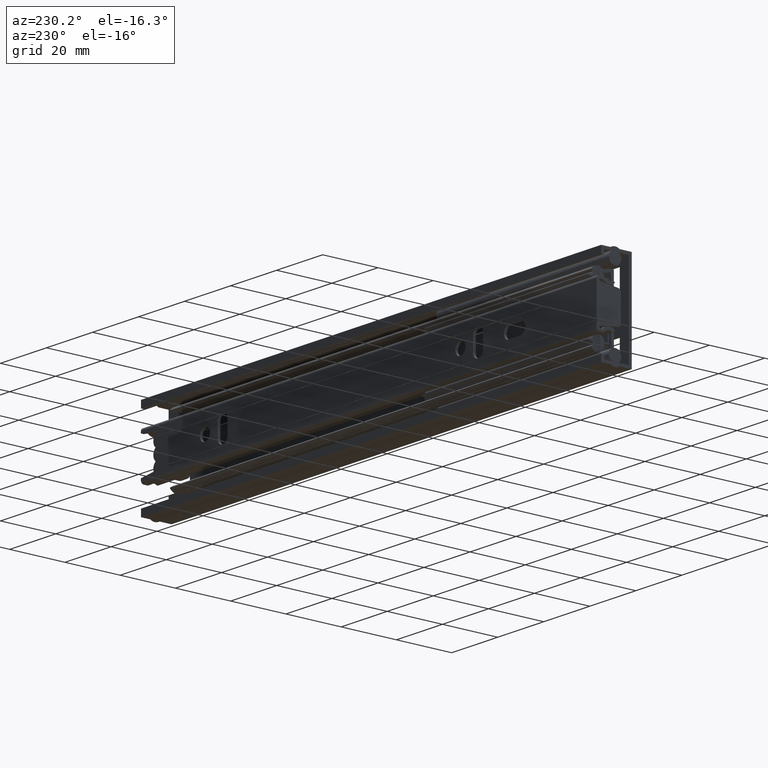
[diagram: clean part render]
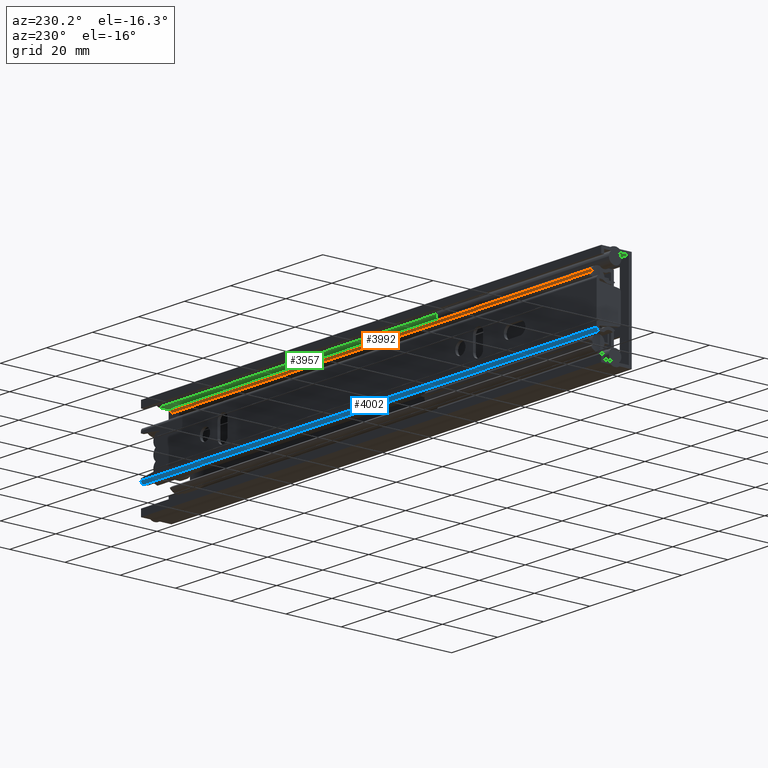
[diagram: same view with three faces highlighted in distinct colors, each labeled with its STEP entity id]
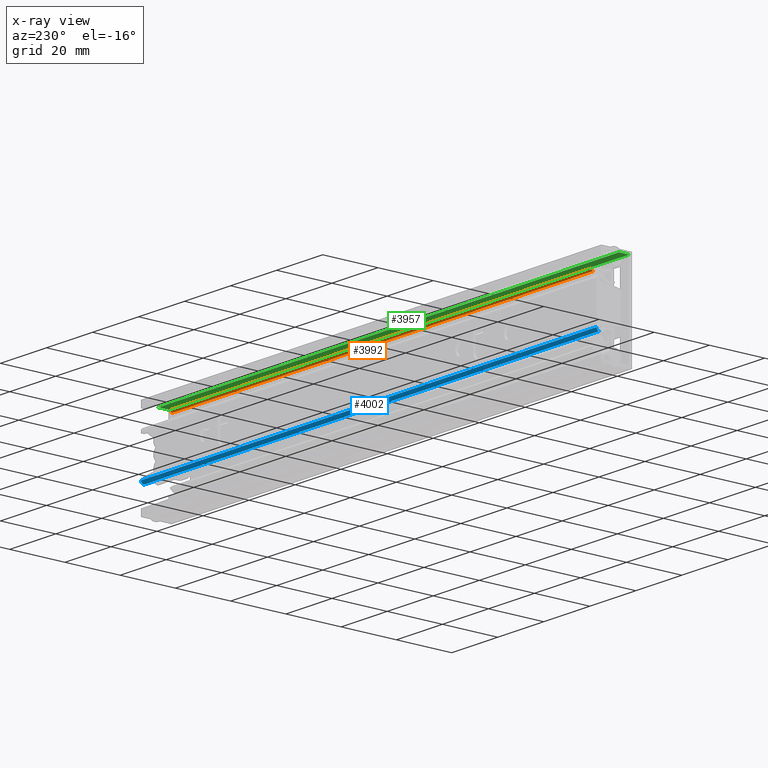
[diagram: x-ray of the same camera — body ghosted, the three highlighted faces saturated]
A machine part, auxiliary view with three faces highlighted in distinct colors.
The next image is the same camera in x-ray (body ghosted, the three faces saturated) — at least one of them is partly hidden behind the body in this view.
Their STEP definitions:

[orange] entity #3992 — the highlighted planar face has unit normal (0, 0.5987, -0.801).
#301=FACE_OUTER_BOUND('',#539,.T.);
#539=EDGE_LOOP('',(#3302,#3303,#3304,#3305));
#860=LINE('',#6242,#1286);
#891=LINE('',#6322,#1317);
#901=LINE('',#6345,#1327);
#902=LINE('',#6347,#1328);
#1286=VECTOR('',#5070,1.00218148947793);
#1317=VECTOR('',#5143,1.00218148947793);
#1327=VECTOR('',#5169,183.);
#1328=VECTOR('',#5172,183.);
#1847=VERTEX_POINT('',#6239);
#1848=VERTEX_POINT('',#6241);
#1875=VERTEX_POINT('',#6319);
#1876=VERTEX_POINT('',#6321);
#2331=EDGE_CURVE('',#1847,#1848,#860,.T.);
#2371=EDGE_CURVE('',#1875,#1876,#891,.T.);
#2383=EDGE_CURVE('',#1847,#1876,#901,.T.);
#2384=EDGE_CURVE('',#1848,#1875,#902,.T.);
#3302=ORIENTED_EDGE('',*,*,#2383,.T.);
#3303=ORIENTED_EDGE('',*,*,#2371,.F.);
#3304=ORIENTED_EDGE('',*,*,#2384,.F.);
#3305=ORIENTED_EDGE('',*,*,#2331,.F.);
#3812=PLANE('',#4305);
#3992=ADVANCED_FACE('',(#301),#3812,.T.);
#4305=AXIS2_PLACEMENT_3D('',#6346,#5170,#5171);
#5070=DIRECTION('',(0.,-0.80097786968476,-0.598693955435716));
#5143=DIRECTION('',(0.,0.80097786968476,0.598693955435716));
#5169=DIRECTION('',(1.,0.,0.));
#5170=DIRECTION('center_axis',(0.,0.598693955435716,-0.800977869684761));
#5171=DIRECTION('ref_axis',(0.,0.80097786968476,0.598693955435716));
#5172=DIRECTION('',(1.,0.,0.));
#6239=CARTESIAN_POINT('',(-91.5,10.806011825547,11.2));
#6241=CARTESIAN_POINT('',(-91.5,10.0032866310674,10.6));
#6242=CARTESIAN_POINT('',(-91.5,10.0032866310674,10.6));
#6319=CARTESIAN_POINT('',(91.5,10.0032866310674,10.6));
#6321=CARTESIAN_POINT('',(91.5,10.806011825547,11.2));
#6322=CARTESIAN_POINT('',(91.5,10.0032866310674,10.6));
#6345=CARTESIAN_POINT('',(0.,10.806011825547,11.2));
#6346=CARTESIAN_POINT('Origin',(0.,10.0032866310674,10.6));
#6347=CARTESIAN_POINT('',(0.,10.0032866310674,10.6));

[blue] entity #4002 — the highlighted cylindrical surface (edge-blend (fillet) strip) has radius 1 mm, axis along (1, 0, 0).
#103=CYLINDRICAL_SURFACE('',#4337,1.);
#311=FACE_OUTER_BOUND('',#556,.T.);
#556=EDGE_LOOP('',(#3388,#3389,#3390,#3391));
#927=LINE('',#6426,#1353);
#934=LINE('',#6458,#1360);
#1353=VECTOR('',#5243,198.);
#1360=VECTOR('',#5270,198.);
#1582=CIRCLE('',#4317,1.);
#1601=CIRCLE('',#4338,1.);
#1886=VERTEX_POINT('',#6370);
#1887=VERTEX_POINT('',#6372);
#1912=VERTEX_POINT('',#6424);
#1927=VERTEX_POINT('',#6456);
#2395=EDGE_CURVE('',#1887,#1886,#1582,.T.);
#2422=EDGE_CURVE('',#1886,#1912,#927,.T.);
#2437=EDGE_CURVE('',#1912,#1927,#1601,.T.);
#2438=EDGE_CURVE('',#1927,#1887,#934,.T.);
#3388=ORIENTED_EDGE('',*,*,#2437,.T.);
#3389=ORIENTED_EDGE('',*,*,#2438,.T.);
#3390=ORIENTED_EDGE('',*,*,#2395,.T.);
#3391=ORIENTED_EDGE('',*,*,#2422,.T.);
#4002=ADVANCED_FACE('',(#311),#103,.T.);
#4317=AXIS2_PLACEMENT_3D('',#6373,#5203,#5204);
#4337=AXIS2_PLACEMENT_3D('',#6455,#5266,#5267);
#4338=AXIS2_PLACEMENT_3D('',#6457,#5268,#5269);
#5203=DIRECTION('center_axis',(1.,0.,0.));
#5204=DIRECTION('ref_axis',(0.,0.707106781186555,-0.70710678118654));
#5243=DIRECTION('',(1.,0.,0.));
#5266=DIRECTION('center_axis',(1.,0.,0.));
#5267=DIRECTION('ref_axis',(0.,0.707106781186555,-0.70710678118654));
#5268=DIRECTION('center_axis',(-1.,0.,0.));
#5269=DIRECTION('ref_axis',(0.,0.707106781186555,-0.70710678118654));
#5270=DIRECTION('',(-1.,0.,0.));
#6370=CARTESIAN_POINT('',(-99.,12.7,-7.15000000000003));
#6372=CARTESIAN_POINT('',(-99.,11.7,-8.15000000000003));
#6373=CARTESIAN_POINT('Origin',(-99.,11.7,-7.15000000000003));
#6424=CARTESIAN_POINT('',(99.,12.7,-7.15000000000003));
#6426=CARTESIAN_POINT('',(0.,12.7,-7.15000000000003));
#6455=CARTESIAN_POINT('Origin',(0.,11.7,-7.15000000000003));
#6456=CARTESIAN_POINT('',(99.,11.7,-8.15000000000003));
#6457=CARTESIAN_POINT('Origin',(99.,11.7,-7.15000000000003));
#6458=CARTESIAN_POINT('',(0.,11.7,-8.15000000000003));

[green] entity #3957 — the highlighted planar face has unit normal (0, -0, -1).
#266=FACE_OUTER_BOUND('',#500,.T.);
#500=EDGE_LOOP('',(#3122,#3123,#3124,#3125));
#661=LINE('',#5681,#1087);
#740=LINE('',#5939,#1166);
#827=LINE('',#6130,#1253);
#835=LINE('',#6146,#1261);
#1087=VECTOR('',#4523,200.);
#1166=VECTOR('',#4716,3.64999999999998);
#1253=VECTOR('',#4949,3.64999999999998);
#1261=VECTOR('',#4973,200.);
#1659=VERTEX_POINT('',#5678);
#1660=VERTEX_POINT('',#5680);
#1782=VERTEX_POINT('',#5938);
#1813=VERTEX_POINT('',#6128);
#2057=EDGE_CURVE('',#1659,#1660,#661,.T.);
#2186=EDGE_CURVE('',#1660,#1782,#740,.T.);
#2281=EDGE_CURVE('',#1813,#1659,#827,.T.);
#2289=EDGE_CURVE('',#1813,#1782,#835,.T.);
#3122=ORIENTED_EDGE('',*,*,#2289,.T.);
#3123=ORIENTED_EDGE('',*,*,#2186,.F.);
#3124=ORIENTED_EDGE('',*,*,#2057,.F.);
#3125=ORIENTED_EDGE('',*,*,#2281,.F.);
#3789=PLANE('',#4240);
#3957=ADVANCED_FACE('',(#266),#3789,.T.);
#4240=AXIS2_PLACEMENT_3D('',#6147,#4974,#4975);
#4523=DIRECTION('',(1.,0.,0.));
#4716=DIRECTION('',(0.,1.,-6.08341383356253E-16));
#4949=DIRECTION('',(0.,-1.,6.08341383356253E-16));
#4973=DIRECTION('',(1.,0.,0.));
#4974=DIRECTION('center_axis',(0.,-6.08341383356253E-16,-1.));
#4975=DIRECTION('ref_axis',(0.,1.,-5.32907051820075E-16));
#5678=CARTESIAN_POINT('',(-100.,1.00000000000001,16.));
#5680=CARTESIAN_POINT('',(100.,1.00000000000001,16.));
#5681=CARTESIAN_POINT('',(0.,1.00000000000001,16.));
#5938=CARTESIAN_POINT('',(100.,4.64999999999999,16.));
#5939=CARTESIAN_POINT('',(100.,1.00000000000001,16.));
#6128=CARTESIAN_POINT('',(-100.,4.64999999999999,16.));
#6130=CARTESIAN_POINT('',(-100.,1.00000000000001,16.));
#6146=CARTESIAN_POINT('',(0.,4.64999999999999,16.));
#6147=CARTESIAN_POINT('Origin',(0.,1.00000000000001,16.));